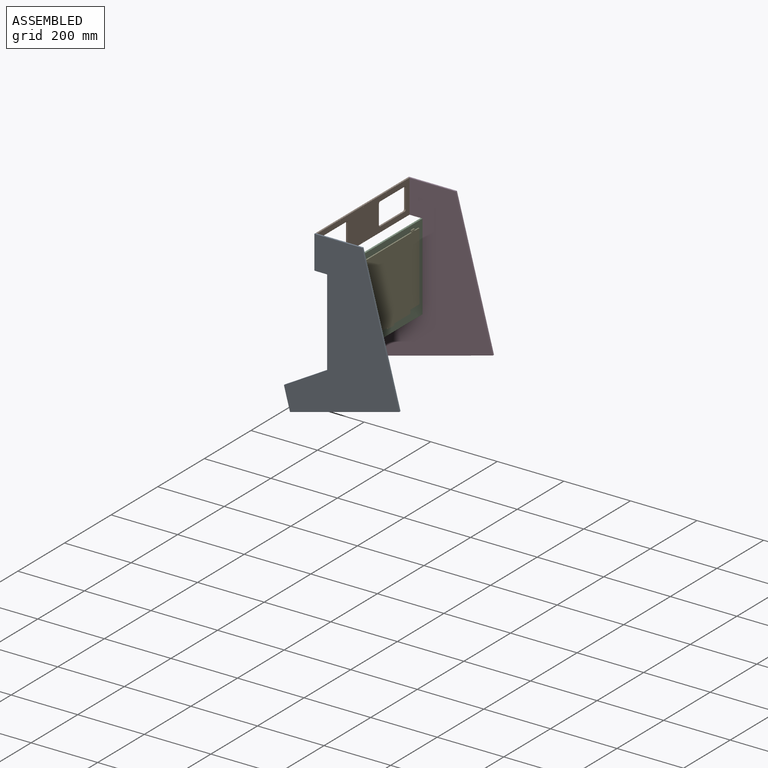
[diagram: assembled view]
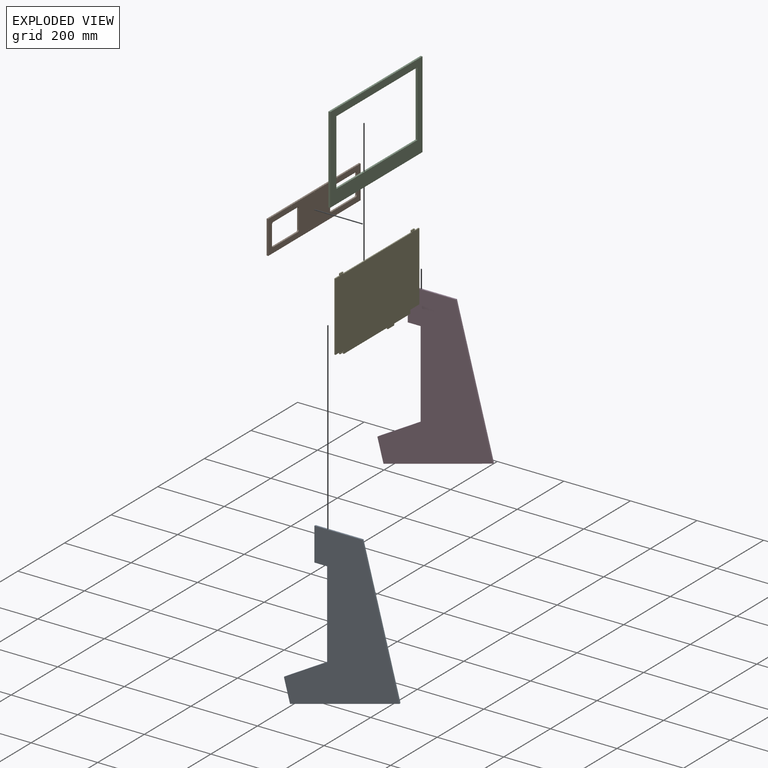
[diagram: exploded view]
GUIDED TOUR — MATED ASSEMBLY (Onshape document 71fb8966e8e5750dfd0f8fe2, AutoMate assembly 71fb8966e8e5750dfd0f8fe2_fd612e7c863e4dca61d75eac_bdba587b29d321c5d2f50072_default)

This assembly has 5 components, labeled P0..P4 below (a component is one placed occurrence of a part; the same part can appear more than once), held together by 7 mates. A mate is a constraint between two components; its type names the relative motion it leaves free:
  FASTENED — locks the two components together rigidly (no relative motion),
  PLANAR — leaves sliding in the plane through the listed point (normal = the listed direction) and rotation about that normal free,
  REVOLUTE — leaves rotation about the listed axis free (a hinge).
Axis/direction vectors are unit vectors and 'through' points are millimeter coordinates, both in the assembly's world frame.

MATES
  1. PLANAR "Planar 4": P1 <-> P0, direction (0.000, 0.000, 1.000) through (81.35, -65.55, 446.93) mm
  2. PLANAR "Planar 1": P3 <-> P2, direction (0.000, -1.000, 0.000) through (177.69, 132.45, 181.76) mm
  3. PLANAR "Planar 2": P1 <-> P3, direction (-1.000, 0.000, 0.000) through (78.85, -65.55, 396.93) mm
  4. FASTENED "Fastened 1": P2 <-> P4, direction (1.000, 0.000, 0.000) through (122.86, -222.05, 331.93) mm
  5. FASTENED "Fastened 2": P0 <-> P2, direction (0.000, 0.000, -1.000) through (117.36, -263.55, 216.93) mm
  6. REVOLUTE "Revolute 1": P2 <-> P3, axis (0.000, 0.000, -1.000) through (117.36, 132.45, 216.93) mm
  7. PLANAR "Planar 3": P1 <-> P0, direction (0.000, -1.000, 0.000) through (81.35, -263.55, 396.93) mm

ASSEMBLY ORDER
  1. P4 — the base component [order verified]
  2. P2 [order verified]
  3. P0 [order verified]
  4. P3 [order verified]
  5. P1 [order verified]
Order-tag legend:
  [order verified] — this step's position reverses a verified removal order: the component was checked to insert without passing through the ones already placed.

Of the 5 components, 5 carry the full construction recipe — the FeatureScript program that regenerates the part's solid from scratch; the rest are supplied as boundary geometry only.
Each toured component is shown spotlighted twice — in the assembled view, then in the exploded view, where a leader line traces a displaced component back to its assembled socket (saturated green if recipe-attached, orange if geometry-only; every other component desaturated gray) — followed by its recipe or geometry summary and the mates that hold it.
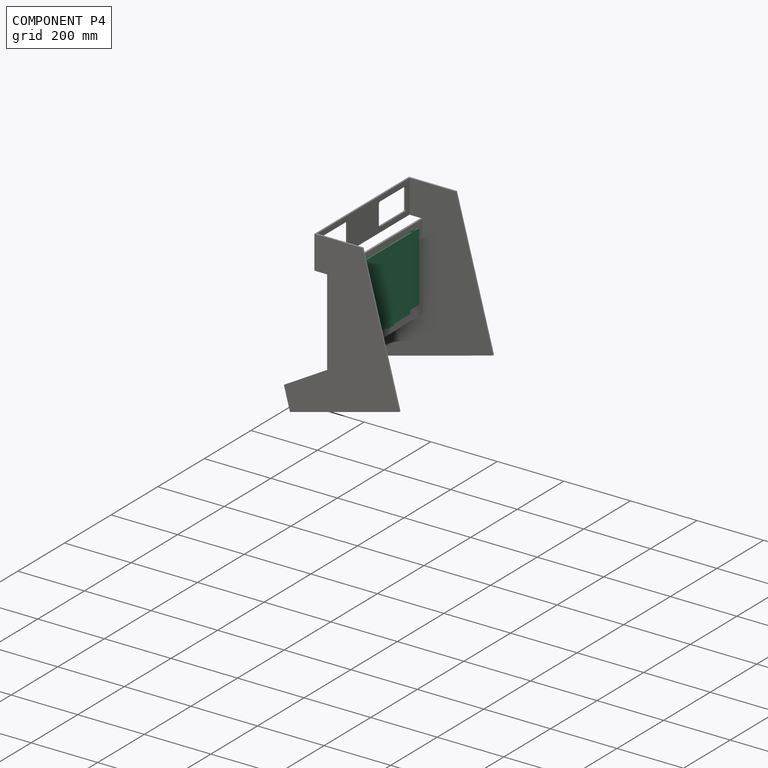
[diagram: component P4 — assembled]
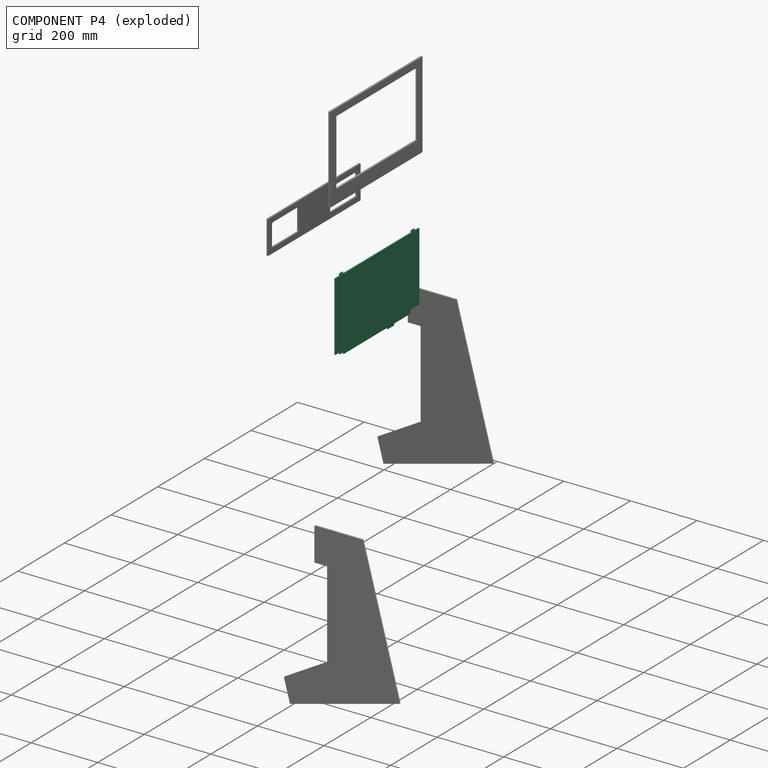
[diagram: component P4 — exploded]
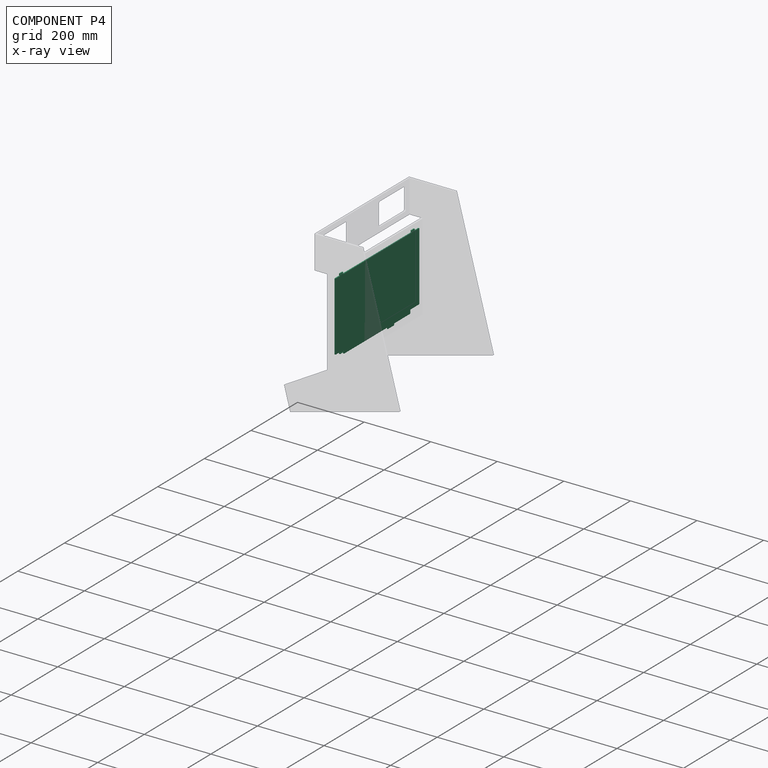
[diagram: component P4 — x-ray view]
COMPONENT P4 — recipe-attached (CADFS 00440159, mesh-verified: the recipe's output STEP matches this component's geometry to below the mesh-comparison resolution (tessellation chordal tolerance ~0.64 mm)).
Held by: FASTENED mate "Fastened 1" to P2.
Construction recipe (FeatureScript — the CAD program that rebuilds this solid; sketch coordinates are in the units given by the * unit suffixes, e.g. mm):

FeatureScript 1511;
import(path : "onshape/std/geometry.fs", version : "1511.0");
import(path : "onshape/std/common.fs", version : "1511.0");
const mm = millimeter;
const VERTEX = EntityType.VERTEX;
const EDGE = EntityType.EDGE;
const FACE = EntityType.FACE;
const BODY = EntityType.BODY;
function v(x, y){return vector(x, y);}
function OD(order){return orderDisambiguation(order);}
function OSD(set){return originalSetDisambiguation(set);}
function TD(topology){return topologyDisambiguation(topology);}
function TDD(query){return trueDependencyDisambiguation(query);}
function sQuery(a, b, c) {return sketchEntityQuery(a, b, c);}

annotation { "Feature Type Name" : "Feature", "Feature Type Description" : "" }
export const myFeature = defineFeature(function(context is Context, id is Id, definition is map)
    precondition{}
    {
        {
            var Q0;
            Q0=qCreatedBy(makeId("Top.planeOp"),FACE);
            var sketch = newSketch(context, id + "F0", { "sketchPlane" : qUnion([Q0])});
            skLineSegment(sketch, "E0.bottom", {"start": v(-180, 103.5) * mm, "end": v(-160, 103.5) * mm});
            skLineSegment(sketch, "E0.top", {"start": v(-180, -103.5) * mm, "end": v(-141, -103.5) * mm});
            skLineSegment(sketch, "E0.left", {"start": v(-180, 103.5) * mm, "end": v(-180, -103.5) * mm});
            skLineSegment(sketch, "E0.right", {"start": v(180, 103.5) * mm, "end": v(180, -103.5) * mm});
            skLineSegment(sketch, "E1.bottom", {"start": v(-160, 109.5) * mm, "end": v(-147, 109.5) * mm});
            skLineSegment(sketch, "E1.left", {"start": v(-160, 109.5) * mm, "end": v(-160, 103.5) * mm});
            skLineSegment(sketch, "E1.right", {"start": v(-147, 109.5) * mm, "end": v(-147, 103.5) * mm});
            skLineSegment(sketch, "E2.bottom", {"start": v(147, 109.5) * mm, "end": v(160, 109.5) * mm});
            skLineSegment(sketch, "E2.left", {"start": v(160, 109.5) * mm, "end": v(160, 103.5) * mm});
            skLineSegment(sketch, "E2.right", {"start": v(147, 109.5) * mm, "end": v(147, 103.5) * mm});
            skCircle(sketch, "E3", {"center": v(-156.5, 106.5) * mm, "radius": 1.5 * mm});
            skCircle(sketch, "E4", {"center": v(-150.5, 106.5) * mm, "radius": 1.5 * mm});
            skPoint(sketch, "E5", {"position": v(0, 103.5) * mm});
            skPoint(sketch, "E6", {"position": v(180, 0) * mm});
            skLineSegment(sketch, "E7.trimOffspring", {"start": v(-147, 103.5) * mm, "end": v(147, 103.5) * mm});
            skCircle(sketch, "E8", {"center": v(150.5, 106.5) * mm, "radius": 1.5 * mm});
            skCircle(sketch, "E9", {"center": v(156.5, 106.5) * mm, "radius": 1.5 * mm});
            skLineSegment(sketch, "E10.trimOffspring", {"start": v(160, 103.5) * mm, "end": v(180, 103.5) * mm});
            skLineSegment(sketch, "E11.top", {"start": v(147, -109.5) * mm, "end": v(160, -109.5) * mm});
            skLineSegment(sketch, "E11.left", {"start": v(147, -103.5) * mm, "end": v(147, -109.5) * mm});
            skLineSegment(sketch, "E11.right", {"start": v(160, -103.5) * mm, "end": v(160, -109.5) * mm});
            skCircle(sketch, "E12", {"center": v(150.5, -106.5) * mm, "radius": 1.5 * mm});
            skCircle(sketch, "E13", {"center": v(156.5, -106.5) * mm, "radius": 1.5 * mm});
            skLineSegment(sketch, "E14.trimOffspring", {"start": v(160, -103.5) * mm, "end": v(180, -103.5) * mm});
            skLineSegment(sketch, "E15.top", {"start": v(-141, -114.5) * mm, "end": v(144, -114.5) * mm});
            skLineSegment(sketch, "E15.left", {"start": v(-141, -103.5) * mm, "end": v(-141, -114.5) * mm});
            skLineSegment(sketch, "E15.right", {"start": v(144, -103.5) * mm, "end": v(144, -114.5) * mm});
            skLineSegment(sketch, "E16.trimOffspring", {"start": v(144, -103.5) * mm, "end": v(147, -103.5) * mm});
            skLineSegment(sketch, "E17.bottom", {"start": v(-72, -114.5) * mm, "end": v(-45, -114.5) * mm});
            skLineSegment(sketch, "E17.top", {"start": v(-72, -119.5) * mm, "end": v(-45, -119.5) * mm});
            skLineSegment(sketch, "E17.left", {"start": v(-72, -114.5) * mm, "end": v(-72, -119.5) * mm});
            skLineSegment(sketch, "E17.right", {"start": v(-45, -114.5) * mm, "end": v(-45, -119.5) * mm});
            skSolve(sketch);
        }
        {
            var Q0;
            Q0=makeQuery(id+"F0.imprint","IMPRINT",FACE,{"disambiguationData":[TD([[makeQuery(id+"F0.imprint","IMPRINT",EDGE,{"derivedFrom":sQuery(id+"F0.wireOp",EDGE,"E0.bottom")}),-1.0]])]});
            var sketch = newSketch(context, id + "F1", { "sketchPlane" : qUnion([Q0])});
            skLineSegment(sketch, "E18.bottom", {"start": v(-176.5, 100) * mm, "end": v(171.25, 100) * mm});
            skLineSegment(sketch, "E18.top", {"start": v(-176.5, -97.5) * mm, "end": v(171.25, -97.5) * mm});
            skLineSegment(sketch, "E18.left", {"start": v(-176.5, 100) * mm, "end": v(-176.5, -97.5) * mm});
            skLineSegment(sketch, "E18.right", {"start": v(171.25, 100) * mm, "end": v(171.25, -97.5) * mm});
            skSolve(sketch);
        }
        {
            var Q0;
            Q0 = qSketchRegion(id + "F0", true);
            extrude(context, id + "F2", {"entities" : qUnion([Q0]), "depth" : 3.5 * mm});
        }
    });
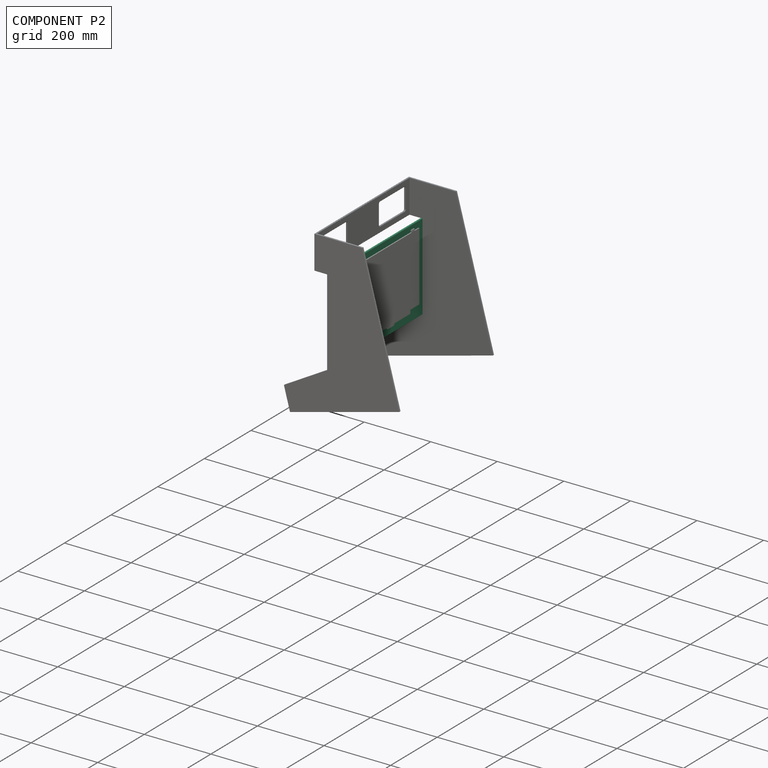
[diagram: component P2 — assembled]
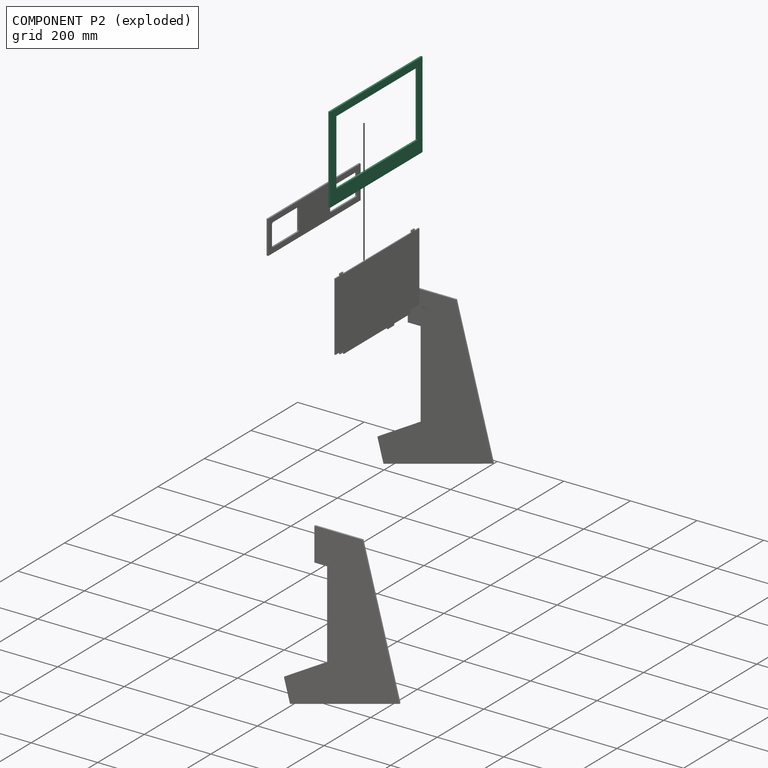
[diagram: component P2 — exploded]
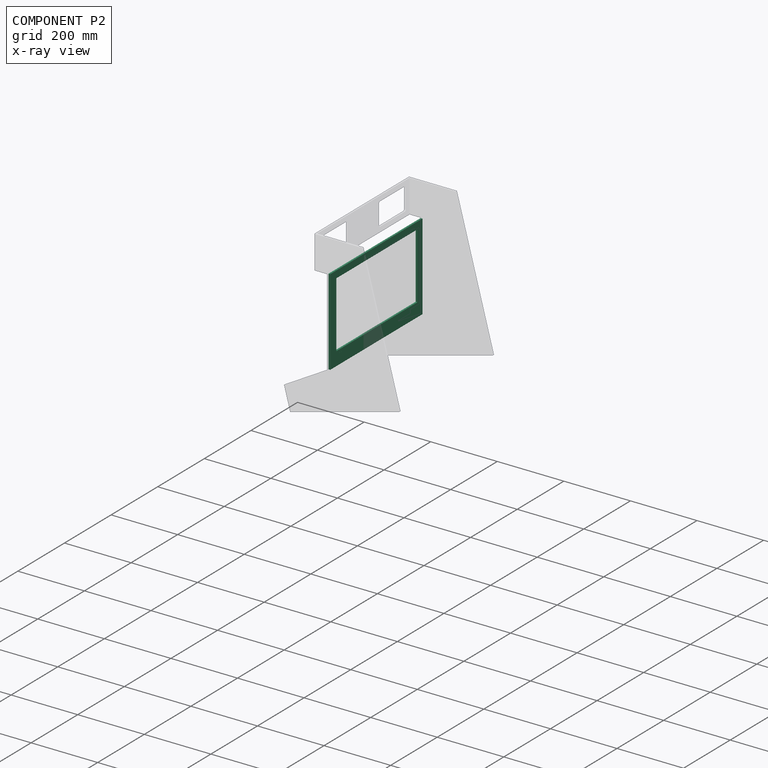
[diagram: component P2 — x-ray view]
COMPONENT P2 — recipe-attached (CADFS 00440160, mesh-verified: the recipe's output STEP matches this component's geometry to below the mesh-comparison resolution (tessellation chordal tolerance ~0.711 mm)).
Held by: PLANAR mate "Planar 1" to P3; FASTENED mate "Fastened 1" to P4; FASTENED mate "Fastened 2" to P0; REVOLUTE mate "Revolute 1" to P3.
Construction recipe (FeatureScript — the CAD program that rebuilds this solid; sketch coordinates are in the units given by the * unit suffixes, e.g. mm):

FeatureScript 1511;
import(path : "onshape/std/geometry.fs", version : "1511.0");
import(path : "onshape/std/common.fs", version : "1511.0");
const mm = millimeter;
const VERTEX = EntityType.VERTEX;
const EDGE = EntityType.EDGE;
const FACE = EntityType.FACE;
const BODY = EntityType.BODY;
function v(x, y){return vector(x, y);}
function OD(order){return orderDisambiguation(order);}
function OSD(set){return originalSetDisambiguation(set);}
function TD(topology){return topologyDisambiguation(topology);}
function TDD(query){return trueDependencyDisambiguation(query);}
function sQuery(a, b, c) {return sketchEntityQuery(a, b, c);}

annotation { "Feature Type Name" : "Feature", "Feature Type Description" : "" }
export const myFeature = defineFeature(function(context is Context, id is Id, definition is map)
    precondition{}
    {
        {
            var Q0;
            Q0=qCreatedBy(makeId("Front.planeOp"),FACE);
            var sketch = newSketch(context, id + "F0", { "sketchPlane" : qUnion([Q0])});
            skLineSegment(sketch, "E0.bottom", {"start": v(-198, 130) * mm, "end": v(198, 130) * mm});
            skLineSegment(sketch, "E0.top", {"start": v(-198, -130) * mm, "end": v(198, -130) * mm});
            skLineSegment(sketch, "E0.left", {"start": v(-198, 130) * mm, "end": v(-198, -130) * mm});
            skLineSegment(sketch, "E0.right", {"start": v(198, 130) * mm, "end": v(198, -130) * mm});
            skPoint(sketch, "E1", {"position": v(0, 130) * mm});
            skPoint(sketch, "E2", {"position": v(-198, 0) * mm});
            skLineSegment(sketch, "E3.bottom", {"start": v(-176.5, 108.5) * mm, "end": v(171.25, 108.5) * mm});
            skLineSegment(sketch, "E3.top", {"start": v(-176.5, -89) * mm, "end": v(171.25, -89) * mm});
            skLineSegment(sketch, "E3.left", {"start": v(-176.5, 108.5) * mm, "end": v(-176.5, -89) * mm});
            skLineSegment(sketch, "E3.right", {"start": v(171.25, 108.5) * mm, "end": v(171.25, -89) * mm});
            skPoint(sketch, "E4", {"position": v(-156.5, 115) * mm});
            skPoint(sketch, "E5", {"position": v(-150.5, 115) * mm});
            skCircle(sketch, "E6", {"center": v(-156.5, 115) * mm, "radius": 0.5 * mm});
            skCircle(sketch, "E7", {"center": v(-150.5, 115) * mm, "radius": 0.5 * mm});
            skPoint(sketch, "E8", {"position": v(156.5, 115) * mm});
            skPoint(sketch, "E9", {"position": v(150.5, 115) * mm});
            skCircle(sketch, "E10", {"center": v(150.5, 115) * mm, "radius": 0.5 * mm});
            skCircle(sketch, "E11", {"center": v(156.5, 115) * mm, "radius": 0.5 * mm});
            skPoint(sketch, "E12", {"position": v(156.5, -98) * mm});
            skPoint(sketch, "E13", {"position": v(150.5, -98) * mm});
            skCircle(sketch, "E14", {"center": v(150.5, -98) * mm, "radius": 0.5 * mm});
            skCircle(sketch, "E15", {"center": v(156.5, -98) * mm, "radius": 0.5 * mm});
            skSolve(sketch);
        }
        {
            var Q0;
            Q0 = qSketchRegion(id + "F0", true);
            extrude(context, id + "F1", {"entities" : qUnion([Q0]), "depth" : 5.5 * mm});
        }
    });
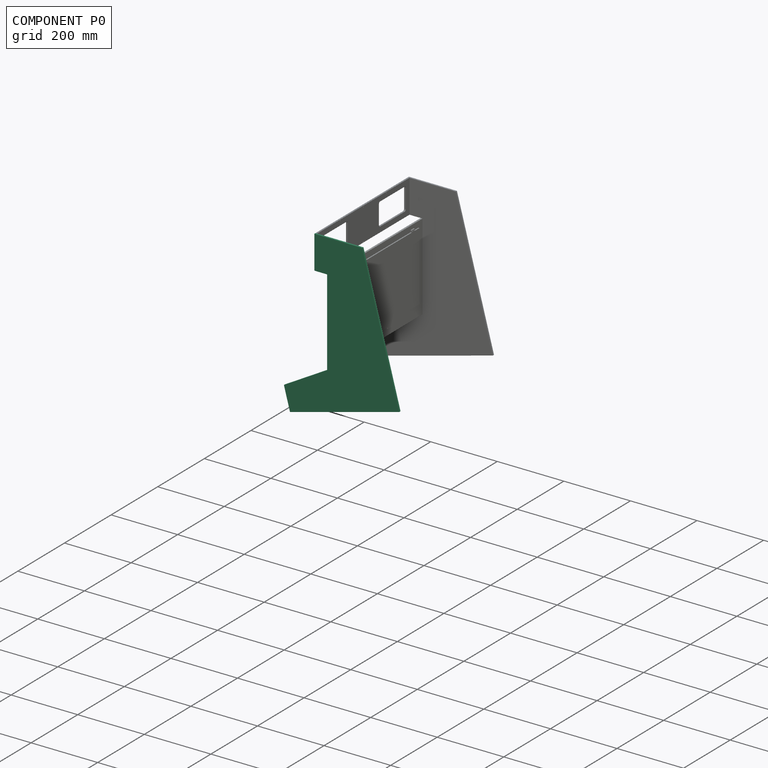
[diagram: component P0 — assembled]
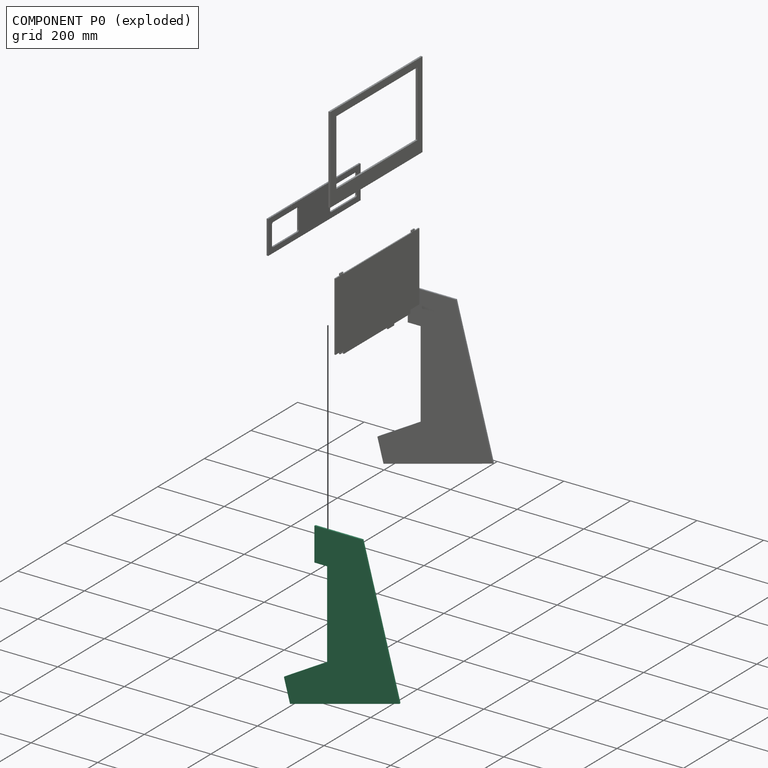
[diagram: component P0 — exploded]
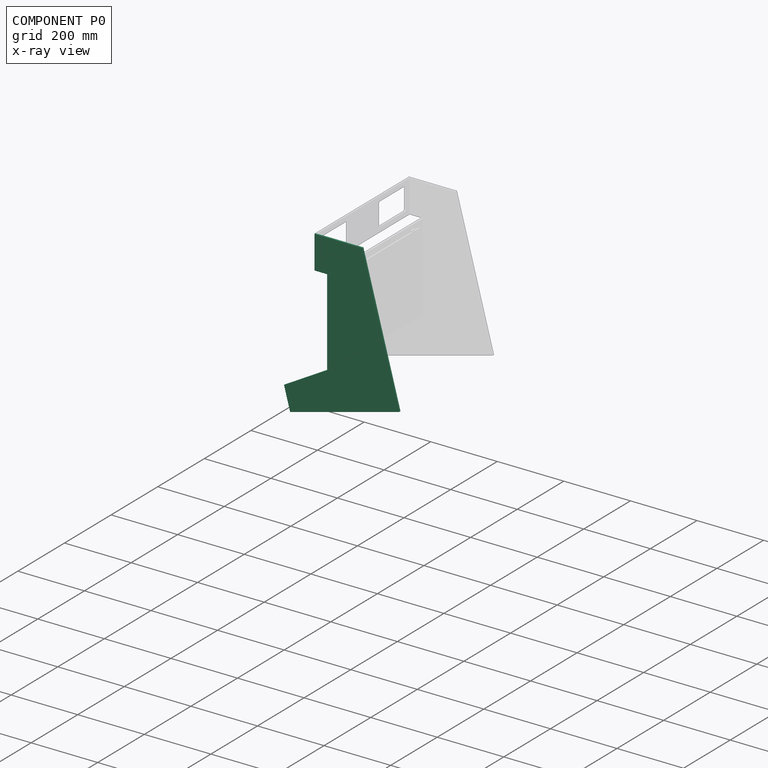
[diagram: component P0 — x-ray view]
COMPONENT P0 — recipe-attached (CADFS 00440162, mesh-verified: the recipe's output STEP matches this component's geometry to below the mesh-comparison resolution (tessellation chordal tolerance ~0.867 mm)).
Held by: PLANAR mate "Planar 4" to P1; FASTENED mate "Fastened 2" to P2; PLANAR mate "Planar 3" to P1.
Construction recipe (FeatureScript — the CAD program that rebuilds this solid; sketch coordinates are in the units given by the * unit suffixes, e.g. mm):

FeatureScript 1511;
import(path : "onshape/std/geometry.fs", version : "1511.0");
import(path : "onshape/std/common.fs", version : "1511.0");
const mm = millimeter;
const VERTEX = EntityType.VERTEX;
const EDGE = EntityType.EDGE;
const FACE = EntityType.FACE;
const BODY = EntityType.BODY;
function v(x, y){return vector(x, y);}
function OD(order){return orderDisambiguation(order);}
function OSD(set){return originalSetDisambiguation(set);}
function TD(topology){return topologyDisambiguation(topology);}
function TDD(query){return trueDependencyDisambiguation(query);}
function sQuery(a, b, c) {return sketchEntityQuery(a, b, c);}

annotation { "Feature Type Name" : "Feature", "Feature Type Description" : "" }
export const myFeature = defineFeature(function(context is Context, id is Id, definition is map)
    precondition{}
    {
        {
            var Q0;
            Q0=qCreatedBy(makeId("Front.planeOp"),FACE);
            var sketch = newSketch(context, id + "F0", { "sketchPlane" : qUnion([Q0])});
            skLineSegment(sketch, "E0", {"start": v(218.24, -245.17) * mm, "end": v(-121.76, -245.17) * mm});
            skLineSegment(sketch, "E1", {"start": v(-121.76, -245.17) * mm, "end": v(-121.76, 184.97) * mm});
            skLineSegment(sketch, "E2", {"start": v(-121.76, 184.97) * mm, "end": v(17.38, 222.25) * mm});
            skLineSegment(sketch, "E3", {"start": v(17.38, 222.25) * mm, "end": v(43.26, 125.66) * mm});
            skLineSegment(sketch, "E4", {"start": v(43.26, 125.66) * mm, "end": v(6.06, 115.69) * mm});
            skLineSegment(sketch, "E5", {"start": v(6.06, 115.69) * mm, "end": v(73.35, -135.45) * mm});
            skLineSegment(sketch, "E6", {"start": v(73.35, -135.45) * mm, "end": v(218.24, -174.28) * mm});
            skLineSegment(sketch, "E7", {"start": v(218.24, -174.28) * mm, "end": v(218.24, -245.17) * mm});
            skSolve(sketch);
        }
        {
            var Q0;
            Q0 = qSketchRegion(id + "F0", true);
            extrude(context, id + "F1", {"entities" : qUnion([Q0]), "depth" : 5 * mm});
        }
    });
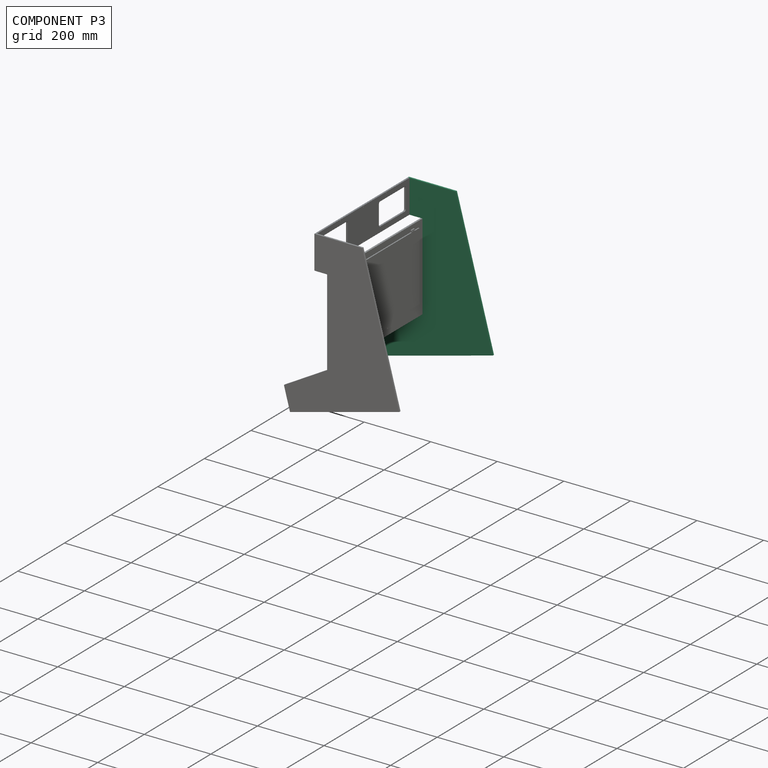
[diagram: component P3 — assembled]
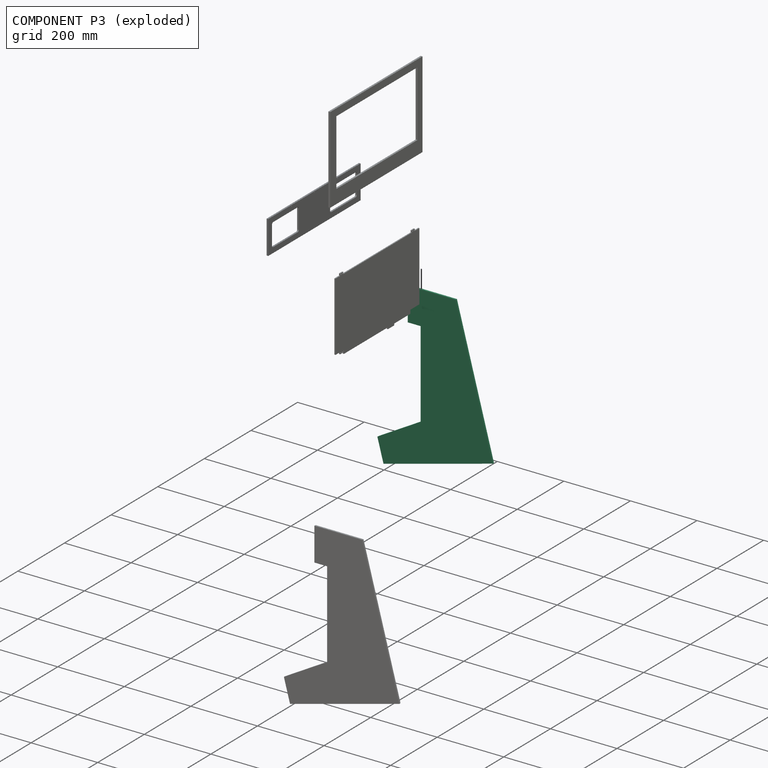
[diagram: component P3 — exploded]
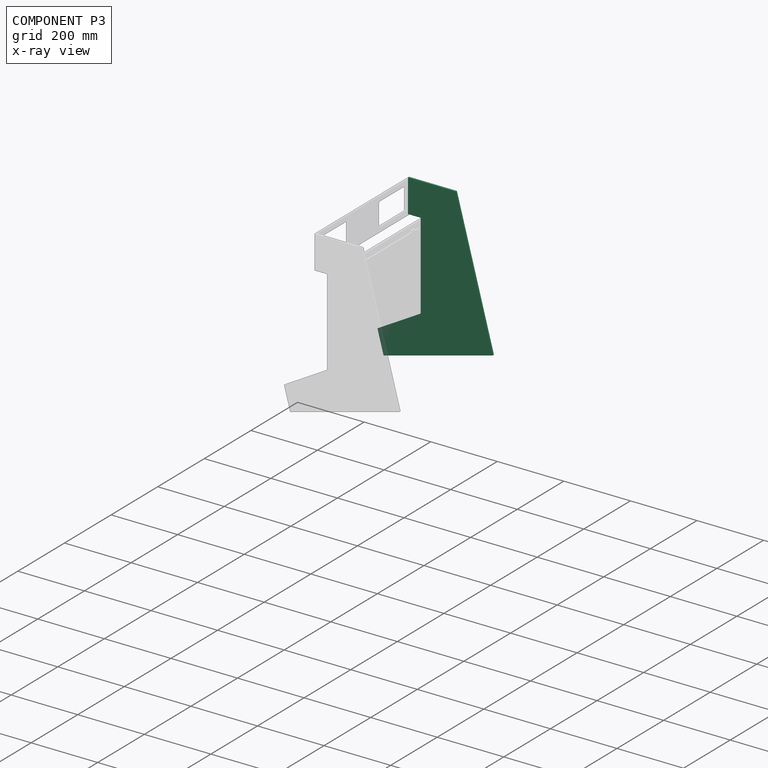
[diagram: component P3 — x-ray view]
COMPONENT P3 — same part as P0 (CADFS 00440162); its construction recipe is shown at P0.
Held by: PLANAR mate "Planar 1" to P2; PLANAR mate "Planar 2" to P1; REVOLUTE mate "Revolute 1" to P2.
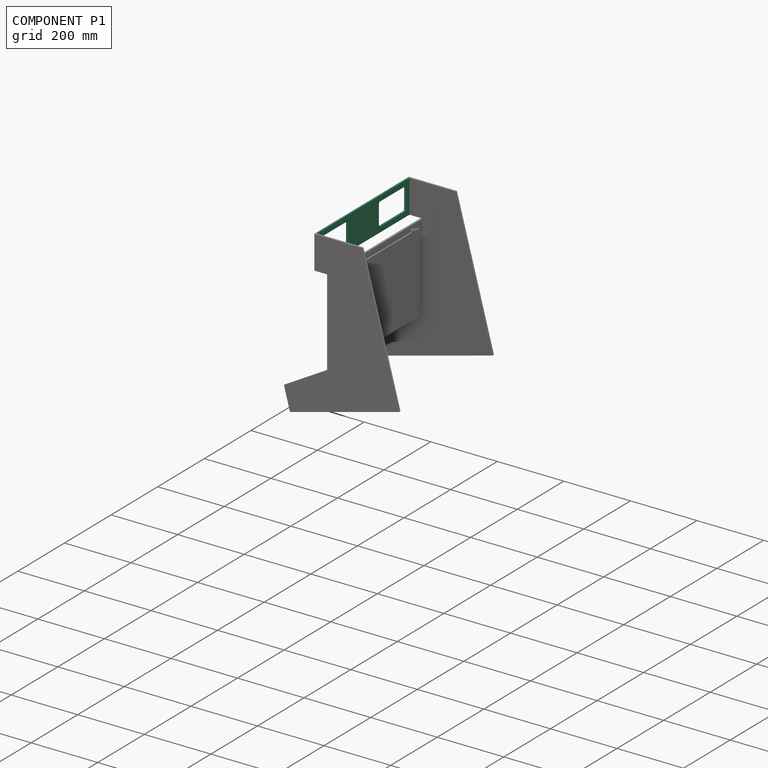
[diagram: component P1 — assembled]
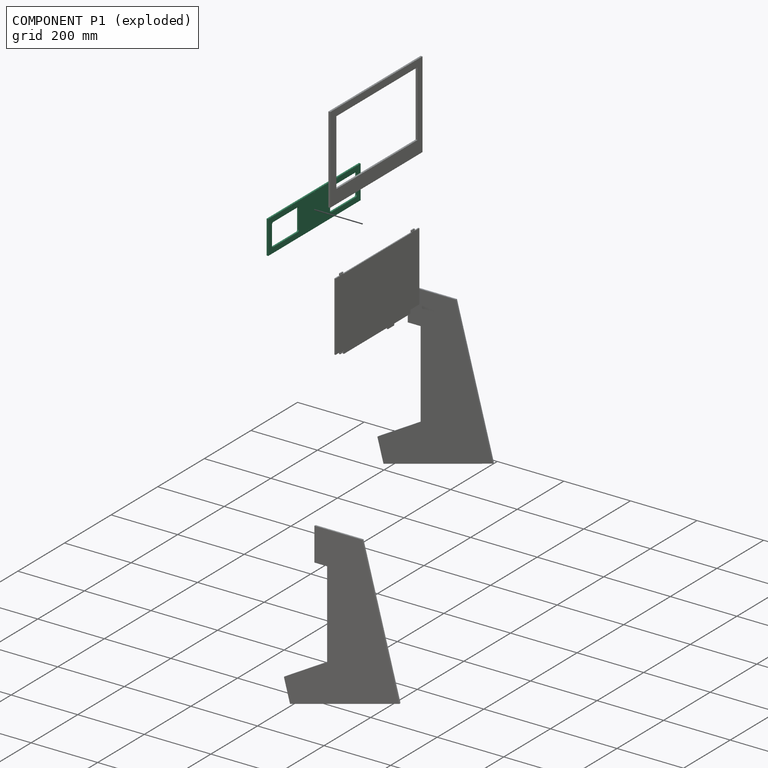
[diagram: component P1 — exploded]
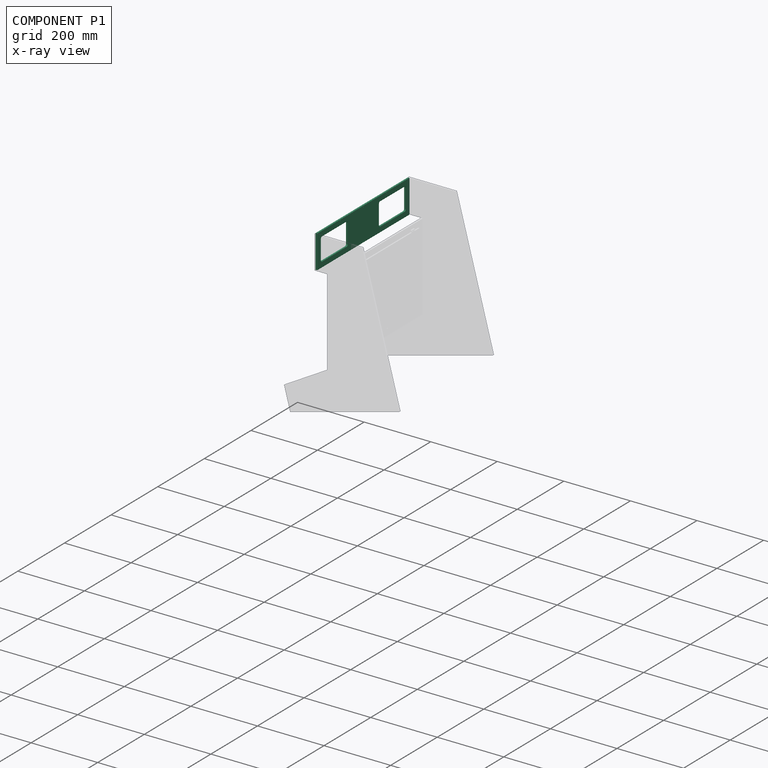
[diagram: component P1 — x-ray view]
COMPONENT P1 — recipe-attached (CADFS 00440161, mesh-verified: the recipe's output STEP matches this component's geometry to below the mesh-comparison resolution (tessellation chordal tolerance ~0.613 mm)).
Held by: PLANAR mate "Planar 4" to P0; PLANAR mate "Planar 2" to P3; PLANAR mate "Planar 3" to P0.
Construction recipe (FeatureScript — the CAD program that rebuilds this solid; sketch coordinates are in the units given by the * unit suffixes, e.g. mm):

FeatureScript 1511;
import(path : "onshape/std/geometry.fs", version : "1511.0");
import(path : "onshape/std/common.fs", version : "1511.0");
const mm = millimeter;
const VERTEX = EntityType.VERTEX;
const EDGE = EntityType.EDGE;
const FACE = EntityType.FACE;
const BODY = EntityType.BODY;
function v(x, y){return vector(x, y);}
function OD(order){return orderDisambiguation(order);}
function OSD(set){return originalSetDisambiguation(set);}
function TD(topology){return topologyDisambiguation(topology);}
function TDD(query){return trueDependencyDisambiguation(query);}
function sQuery(a, b, c) {return sketchEntityQuery(a, b, c);}

annotation { "Feature Type Name" : "Feature", "Feature Type Description" : "" }
export const myFeature = defineFeature(function(context is Context, id is Id, definition is map)
    precondition{}
    {
        {
            var Q0;
            Q0=qCreatedBy(makeId("Top.planeOp"),FACE);
            var sketch = newSketch(context, id + "F0", { "sketchPlane" : qUnion([Q0])});
            skLineSegment(sketch, "E0.bottom", {"start": v(-198, 50) * mm, "end": v(198, 50) * mm});
            skLineSegment(sketch, "E0.top", {"start": v(-198, -50) * mm, "end": v(198, -50) * mm});
            skLineSegment(sketch, "E0.left", {"start": v(-198, 50) * mm, "end": v(-198, -50) * mm});
            skLineSegment(sketch, "E0.right", {"start": v(198, 50) * mm, "end": v(198, -50) * mm});
            skPoint(sketch, "E1", {"position": v(-198, 0) * mm});
            skPoint(sketch, "E2", {"position": v(0, 50) * mm});
            skLineSegment(sketch, "E3.bottom", {"start": v(-177, 34) * mm, "end": v(-72, 34) * mm});
            skLineSegment(sketch, "E3.top", {"start": v(-177, -34) * mm, "end": v(-72, -34) * mm});
            skLineSegment(sketch, "E3.left", {"start": v(-182, 29) * mm, "end": v(-182, -29) * mm});
            skLineSegment(sketch, "E3.right", {"start": v(-67, 29) * mm, "end": v(-67, -29) * mm});
            skLineSegment(sketch, "E4.bottom", {"start": v(72, 34) * mm, "end": v(177, 34) * mm});
            skLineSegment(sketch, "E4.top", {"start": v(72, -34) * mm, "end": v(177, -34) * mm});
            skLineSegment(sketch, "E4.left", {"start": v(67, 29) * mm, "end": v(67, -29) * mm});
            skLineSegment(sketch, "E4.right", {"start": v(182, 29) * mm, "end": v(182, -29) * mm});
            skPoint(sketch, "E5", {"position": v(-182, 0) * mm});
            skPoint(sketch, "E6.visualSharp", {"position": v(-182, 34) * mm});
            skArc(sketch, "E6.filletArc", {"start": v(-177, 34) * mm, "mid": v(-180.54, 32.54) * mm, "end": v(-182, 29) * mm});
            skPoint(sketch, "E7.visualSharp", {"position": v(-67, 34) * mm});
            skArc(sketch, "E7.filletArc", {"start": v(-67, 29) * mm, "mid": v(-68.46, 32.54) * mm, "end": v(-72, 34) * mm});
            skPoint(sketch, "E8.visualSharp", {"position": v(-67, -34) * mm});
            skArc(sketch, "E8.filletArc", {"start": v(-72, -34) * mm, "mid": v(-68.46, -32.54) * mm, "end": v(-67, -29) * mm});
            skPoint(sketch, "E9.visualSharp", {"position": v(-182, -34) * mm});
            skArc(sketch, "E9.filletArc", {"start": v(-182, -29) * mm, "mid": v(-180.54, -32.54) * mm, "end": v(-177, -34) * mm});
            skPoint(sketch, "E10.visualSharp", {"position": v(67, 34) * mm});
            skArc(sketch, "E10.filletArc", {"start": v(72, 34) * mm, "mid": v(68.46, 32.54) * mm, "end": v(67, 29) * mm});
            skPoint(sketch, "E11.visualSharp", {"position": v(67, -34) * mm});
            skArc(sketch, "E11.filletArc", {"start": v(67, -29) * mm, "mid": v(68.46, -32.54) * mm, "end": v(72, -34) * mm});
            skPoint(sketch, "E12.visualSharp", {"position": v(182, 34) * mm});
            skArc(sketch, "E12.filletArc", {"start": v(182, 29) * mm, "mid": v(180.54, 32.54) * mm, "end": v(177, 34) * mm});
            skPoint(sketch, "E13.visualSharp", {"position": v(182, -34) * mm});
            skArc(sketch, "E13.filletArc", {"start": v(177, -34) * mm, "mid": v(180.54, -32.54) * mm, "end": v(182, -29) * mm});
            skCircle(sketch, "E14", {"center": v(-99, 47.25) * mm, "radius": 1.13 * mm});
            skCircle(sketch, "E15", {"center": v(-99, -47.25) * mm, "radius": 1.13 * mm});
            skCircle(sketch, "E16", {"center": v(0, 47.25) * mm, "radius": 1.13 * mm});
            skCircle(sketch, "E17", {"center": v(0, -47.25) * mm, "radius": 1.13 * mm});
            skCircle(sketch, "E18", {"center": v(99, 47.25) * mm, "radius": 1.13 * mm});
            skCircle(sketch, "E19", {"center": v(99, -47.25) * mm, "radius": 1.13 * mm});
            skSolve(sketch);
        }
        {
            var Q0;
            Q0 = qSketchRegion(id + "F0", true);
            extrude(context, id + "F1", {"entities" : qUnion([Q0]), "depth" : 5 * mm});
        }
    });
PROVENANCE & LICENSES
Assembly (occurrences, transforms, mates, per-part STEP geometry): AutoMate dataset, Zenodo record 7776208, CC0.
Construction recipes: CADFS (HuggingFace VladPyatov/CADFS, CC-BY-4.0, layered over the ABC dataset), FeatureScript reconstruction programs keyed by ABC model id.
Join: ABC meta listings map ABC model id -> Onshape documentId; within a shared document, parts are matched by geometric signature (bounding-box dims + volume at 0.1% relative tolerance, exact B-rep face/solid counts).
Verification: 5 of this assembly's 5 components carry a recipe attachment, and every attachment is mesh-verified: the CADFS STEP and the AutoMate member STEP were compared as meshes in their shared local frame (symmetric sampled-point-to-mesh distance); worst across the 5 attachments: below the mesh-comparison resolution (tessellation chordal tolerance ~0.867 mm) on a 578 mm part.
Renders: orthographic iso camera (az 35 / el 25); the floor grid conveys scale (grid pitch printed in each image; no ruler). In the exploded view each component is displaced by its stored offset vector: the offsets alone carry the explosion direction (mate normal/axis signs are not orientation cues and do not encode it), and separation distances are assigned per mate-chain, not proportionally to assembly-order depth.
